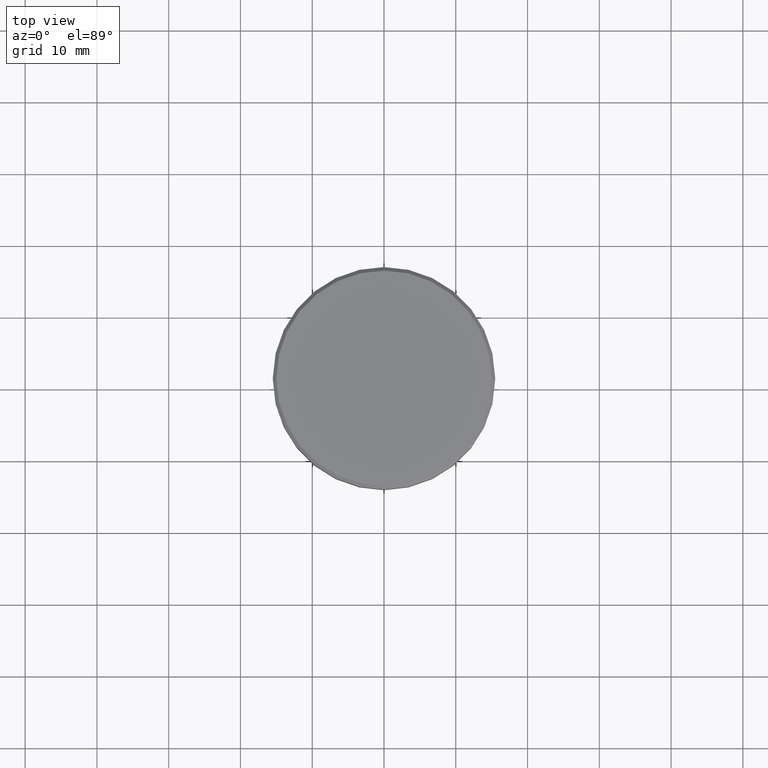
[diagram: clean part render]
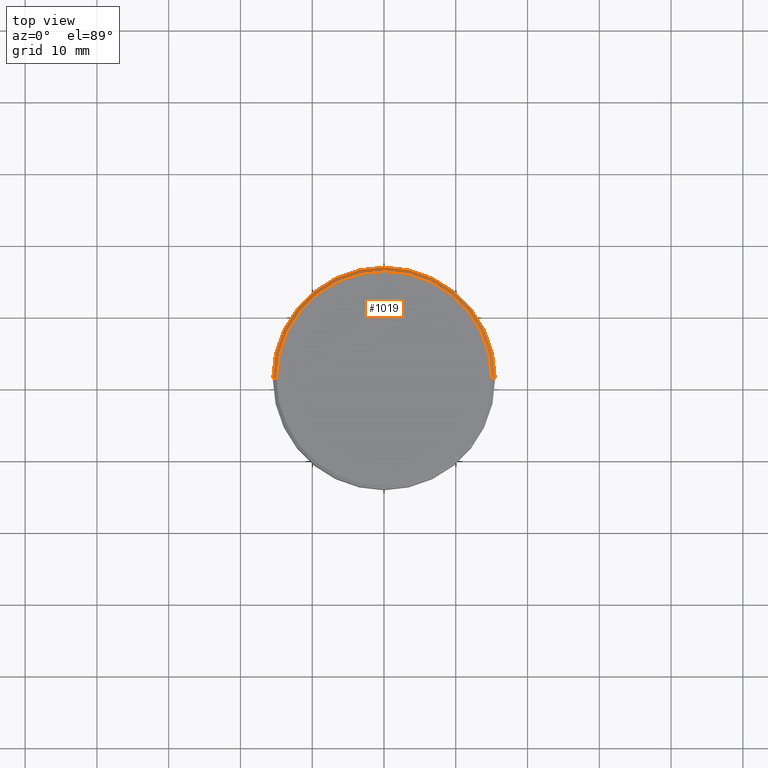
[diagram: same view with one face highlighted and labeled with its STEP entity id]
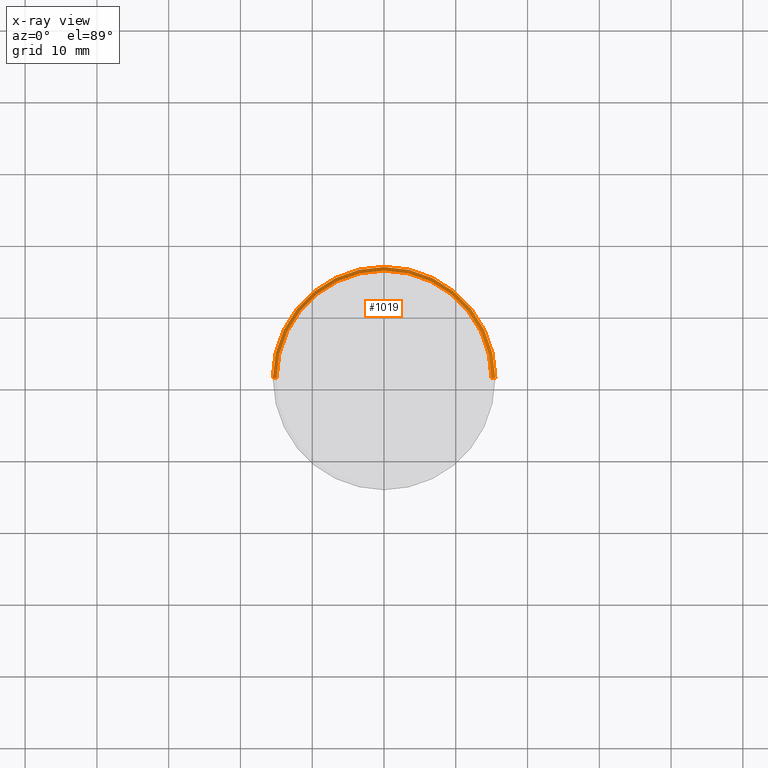
[diagram: x-ray of the same camera — body ghosted, the highlighted face saturated]
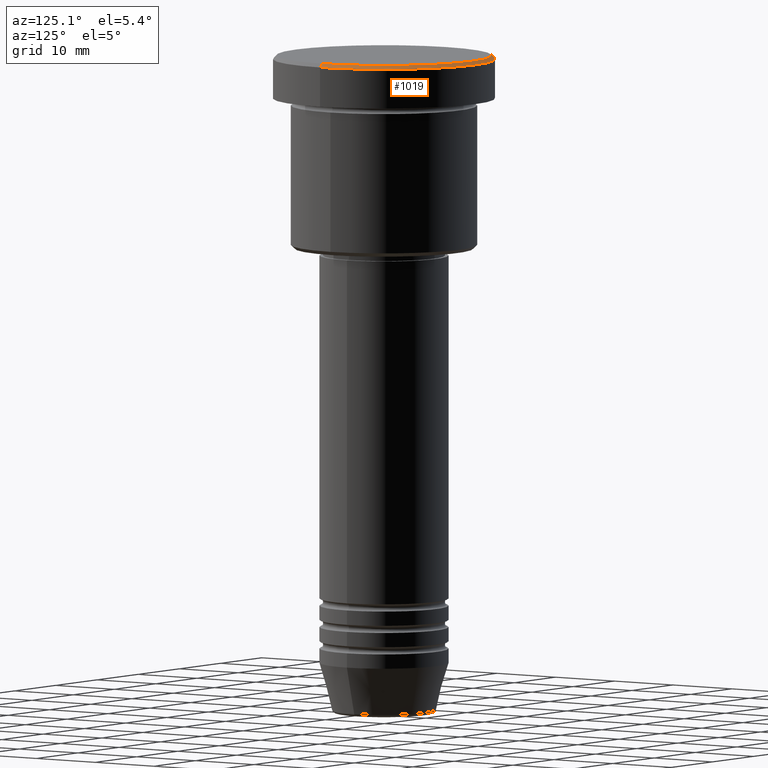
[diagram: same view with one face highlighted and labeled with its STEP entity id]
A machine part, top view. The second image highlights one B-rep face of the part: STEP entity #1019.
The next image is the same camera in x-ray: the body ghosted, the highlighted face saturated — about 0% of this face is hidden behind the body in this view.
A second angle (auxiliary view) of the same face is appended — the face is thin or edge-on in the first view.
In plain terms, the highlighted conical surface has half-angle 45 deg.
Its self-contained STEP definition (entity closure, byte-faithful):
#17 = CIRCLE ( 'NONE', #1130, 15.50000000000000000 ) ;
#31 = VECTOR ( 'NONE', #379, 1000.000000000000000 ) ;
#37 = LINE ( 'NONE', #751, #31 ) ;
#41 = DIRECTION ( 'NONE',  ( -1.000000000000000000, 0.000000000000000000, 0.000000000000000000 ) ) ;
#100 = DIRECTION ( 'NONE',  ( 1.000000000000000000, 0.000000000000000000, 0.000000000000000000 ) ) ;
#134 = CARTESIAN_POINT ( 'NONE',  ( 0.000000000000000000, 0.000000000000000000, 0.000000000000000000 ) ) ;
#230 = EDGE_CURVE ( 'NONE', #1037, #1048, #1183, .T. ) ;
#242 = CARTESIAN_POINT ( 'NONE',  ( 15.00000000000001421, 1.867586368699714559E-15, 0.000000000000000000 ) ) ;
#245 = DIRECTION ( 'NONE',  ( 1.000000000000000000, 0.000000000000000000, 0.000000000000000000 ) ) ;
#275 = VECTOR ( 'NONE', #896, 1000.000000000000000 ) ;
#310 = CARTESIAN_POINT ( 'NONE',  ( 15.50000000000000000, 0.000000000000000000, -0.4999999999999987232 ) ) ;
#323 = ORIENTED_EDGE ( 'NONE', *, *, #1076, .F. ) ;
#379 = DIRECTION ( 'NONE',  ( 0.7071067811865389130, 8.659560562354828088E-17, -0.7071067811865561215 ) ) ;
#475 = CONICAL_SURFACE ( 'NONE', #1155, 15.00000000000001421, 0.7853981633974361776 ) ;
#496 = DIRECTION ( 'NONE',  ( 0.000000000000000000, 0.000000000000000000, -1.000000000000000000 ) ) ;
#517 = CARTESIAN_POINT ( 'NONE',  ( -15.00000000000001421, 0.000000000000000000, 0.000000000000000000 ) ) ;
#554 = DIRECTION ( 'NONE',  ( -0.000000000000000000, -0.000000000000000000, 1.000000000000000000 ) ) ;
#566 = CIRCLE ( 'NONE', #1127, 15.00000000000001421 ) ;
#575 = EDGE_CURVE ( 'NONE', #1082, #987, #37, .T. ) ;
#596 = EDGE_LOOP ( 'NONE', ( #704, #828, #323, #1090 ) ) ;
#704 = ORIENTED_EDGE ( 'NONE', *, *, #803, .F. ) ;
#751 = CARTESIAN_POINT ( 'NONE',  ( 15.00000000000001421, 1.836970198721031561E-15, 0.000000000000000000 ) ) ;
#761 = FACE_OUTER_BOUND ( 'NONE', #596, .T. ) ;
#778 = DIRECTION ( 'NONE',  ( 0.000000000000000000, 0.000000000000000000, -1.000000000000000000 ) ) ;
#787 = CARTESIAN_POINT ( 'NONE',  ( -15.00000000000001421, 0.000000000000000000, 0.000000000000000000 ) ) ;
#798 = CARTESIAN_POINT ( 'NONE',  ( 0.000000000000000000, 0.000000000000000000, -0.4999999999999987232 ) ) ;
#803 = EDGE_CURVE ( 'NONE', #1082, #1037, #566, .T. ) ;
#828 = ORIENTED_EDGE ( 'NONE', *, *, #575, .T. ) ;
#874 = CARTESIAN_POINT ( 'NONE',  ( -15.50000000000000000, 1.898202538678397557E-15, -0.4999999999999987232 ) ) ;
#896 = DIRECTION ( 'NONE',  ( -0.7071067811865389130, 0.000000000000000000, -0.7071067811865561215 ) ) ;
#987 = VERTEX_POINT ( 'NONE', #310 ) ;
#1018 = CARTESIAN_POINT ( 'NONE',  ( 0.000000000000000000, 0.000000000000000000, 0.000000000000000000 ) ) ;
#1019 = ADVANCED_FACE ( 'NONE', ( #761 ), #475, .T. ) ;
#1037 = VERTEX_POINT ( 'NONE', #517 ) ;
#1048 = VERTEX_POINT ( 'NONE', #874 ) ;
#1076 = EDGE_CURVE ( 'NONE', #1048, #987, #17, .T. ) ;
#1082 = VERTEX_POINT ( 'NONE', #242 ) ;
#1090 = ORIENTED_EDGE ( 'NONE', *, *, #230, .F. ) ;
#1127 = AXIS2_PLACEMENT_3D ( 'NONE', #1018, #554, #100 ) ;
#1130 = AXIS2_PLACEMENT_3D ( 'NONE', #798, #778, #245 ) ;
#1155 = AXIS2_PLACEMENT_3D ( 'NONE', #134, #496, #41 ) ;
#1183 = LINE ( 'NONE', #787, #275 ) ;